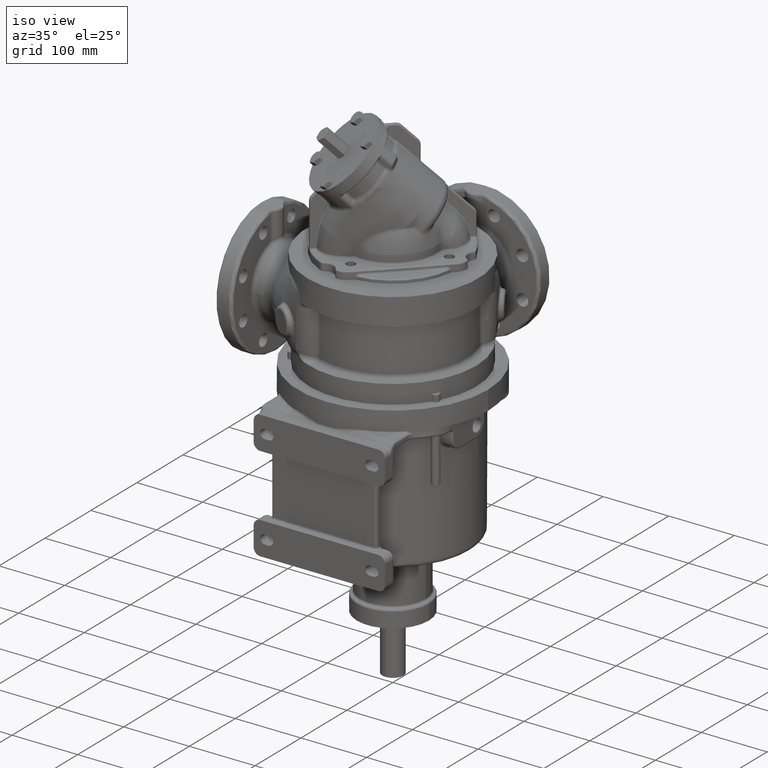
[diagram: clean part render]
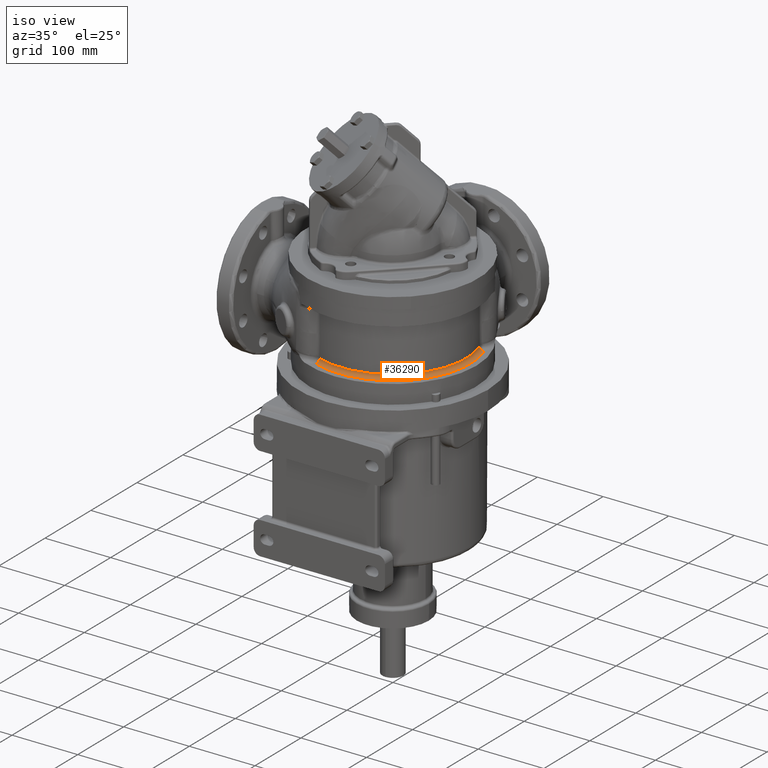
[diagram: same view with one face highlighted and labeled with its STEP entity id]
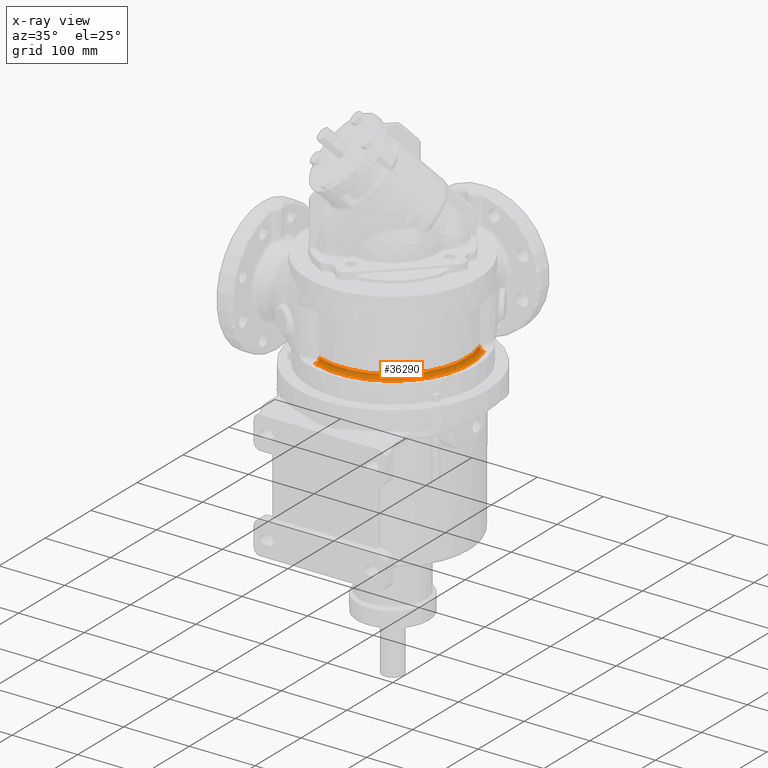
[diagram: x-ray of the same camera — body ghosted, the highlighted face saturated]
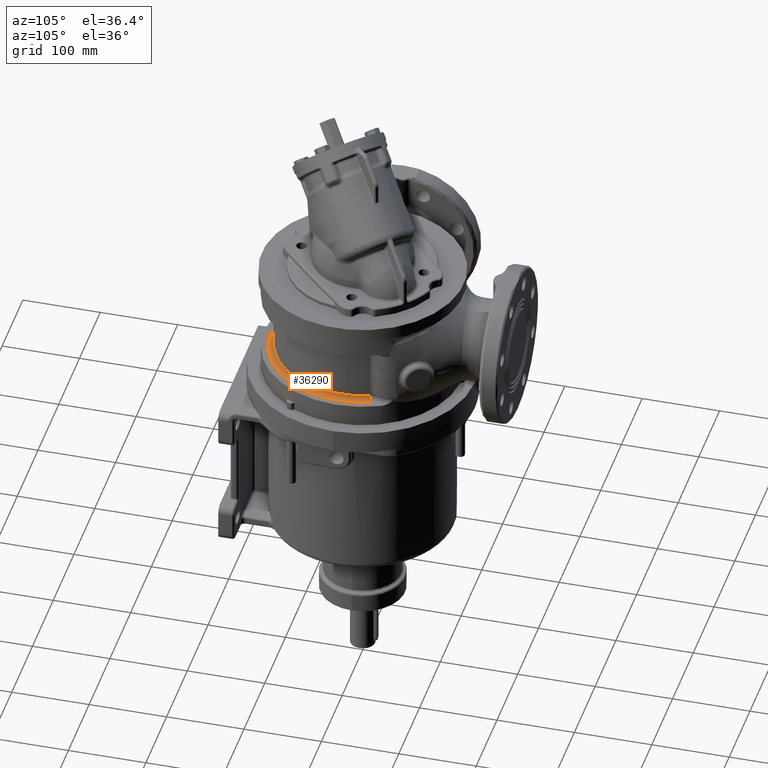
[diagram: same view with one face highlighted and labeled with its STEP entity id]
A machine part, iso view. The second image highlights one B-rep face of the part: STEP entity #36290.
The next image is the same camera in x-ray: the body ghosted, the highlighted face saturated — about 0% of this face is hidden behind the body in this view.
A second angle (auxiliary view) of the same face is appended — the face is thin or edge-on in the first view.
In plain terms, the highlighted toroidal blend (fillet) surface has major radius 118 mm and minor (blend) radius 6 mm.
Its self-contained STEP definition (entity closure, byte-faithful):
#9575=CARTESIAN_POINT('',(1.053262684407E2,3.808381781350E1,6.350000000522E1));
#9577=CARTESIAN_POINT('',(-3.808383962353E1,-1.053262605961E2,
6.350000003173E1));
#9975=CARTESIAN_POINT('',(1.109687459383E2,4.012401630492E1,5.750000005854E1));
#10013=CARTESIAN_POINT('',(-4.012401437707E1,-1.109687451408E2,
5.750000006526E1));
#10061=CARTESIAN_POINT('',(1.109687479189E2,4.012402005416E1,6.35E1));
#10062=DIRECTION('',(3.400340682556E-1,-9.404131179570E-1,0.E0));
#10063=DIRECTION('',(-9.404131179570E-1,-3.400340682556E-1,
-2.368475785867E-14));
#10064=AXIS2_PLACEMENT_3D('',#10061,#10062,#10063);
#10141=CARTESIAN_POINT('',(0.E0,-4.946328324905E-14,5.75E1));
#10142=DIRECTION('',(0.E0,0.E0,-1.E0));
#10143=DIRECTION('',(9.404131524295E-1,3.400339729167E-1,0.E0));
#10144=AXIS2_PLACEMENT_3D('',#10141,#10142,#10143);
#10146=CARTESIAN_POINT('',(0.E0,-4.946328324905E-14,6.35E1));
#10147=DIRECTION('',(0.E0,0.E0,1.E0));
#10148=DIRECTION('',(-3.400349202994E-1,-9.404128098750E-1,0.E0));
#10149=AXIS2_PLACEMENT_3D('',#10146,#10147,#10148);
#10156=CARTESIAN_POINT('',(-4.012402005415E1,-1.109687479189E2,6.35E1));
#10157=DIRECTION('',(9.404131179570E-1,-3.400340682556E-1,0.E0));
#10158=DIRECTION('',(-1.231607408651E-12,-3.408236655863E-12,-1.E0));
#10159=AXIS2_PLACEMENT_3D('',#10156,#10157,#10158);
#16065=VERTEX_POINT('',#9975);
#16114=VERTEX_POINT('',#10013);
#16167=VERTEX_POINT('',#9575);
#16173=VERTEX_POINT('',#9577);
#36278=CARTESIAN_POINT('',(0.E0,-4.946328324905E-14,6.35E1));
#36279=DIRECTION('',(0.E0,0.E0,-1.E0));
#36280=DIRECTION('',(-3.931387430088E-1,-9.194791616700E-1,0.E0));
#36281=AXIS2_PLACEMENT_3D('',#36278,#36279,#36280);
#36282=TOROIDAL_SURFACE('',#36281,1.18E2,6.E0);
#36283=ORIENTED_EDGE('',*,*,#36158,.T.);
#36285=ORIENTED_EDGE('',*,*,#36284,.T.);
#36286=ORIENTED_EDGE('',*,*,#34868,.T.);
#36287=ORIENTED_EDGE('',*,*,#36270,.T.);
#36288=EDGE_LOOP('',(#36283,#36285,#36286,#36287));
#36289=FACE_OUTER_BOUND('',#36288,.F.);
#36290=ADVANCED_FACE('',(#36289),#36282,.F.);
#10065=CIRCLE('',#10064,6.E0);
#10145=CIRCLE('',#10144,1.18E2);
#10150=CIRCLE('',#10149,1.12E2);
#10160=CIRCLE('',#10159,6.E0);
#34868=EDGE_CURVE('',#16173,#16167,#10150,.T.);
#36158=EDGE_CURVE('',#16065,#16114,#10145,.T.);
#36270=EDGE_CURVE('',#16167,#16065,#10065,.T.);
#36284=EDGE_CURVE('',#16114,#16173,#10160,.T.);